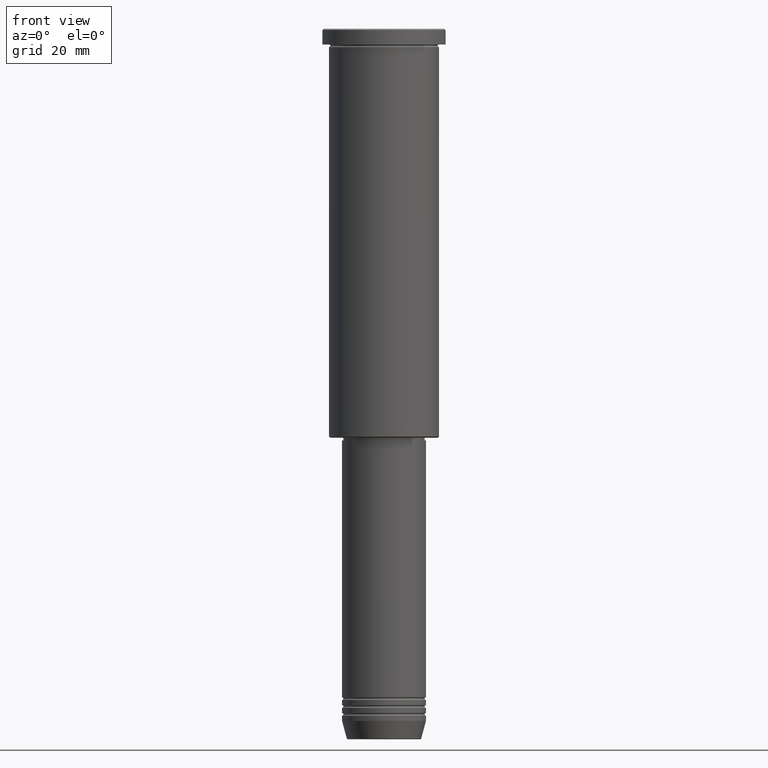
[diagram: clean part render]
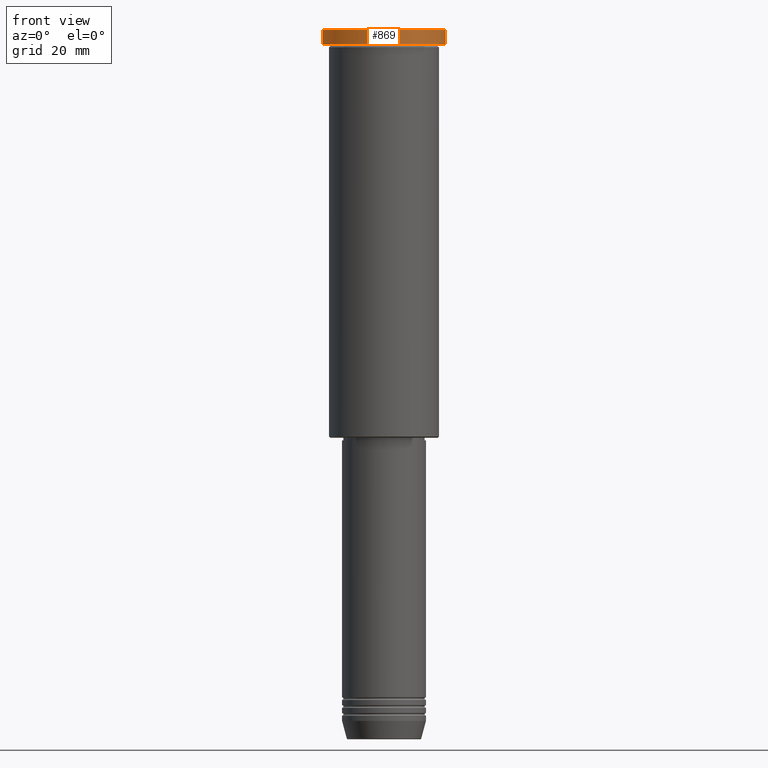
[diagram: same view with one face highlighted and labeled with its STEP entity id]
A machine part, front view. The second image highlights one B-rep face of the part: STEP entity #869.
In plain terms, the highlighted cylindrical surface (partial cylindrical patch) has radius 23.5 mm, axis along (-0, -0, 1).
Its self-contained STEP definition (entity closure, byte-faithful):
#10 = DIRECTION ( 'NONE',  ( 0.000000000000000000, 0.000000000000000000, -1.000000000000000000 ) ) ;
#17 = ORIENTED_EDGE ( 'NONE', *, *, #463, .T. ) ;
#39 = CARTESIAN_POINT ( 'NONE',  ( 0.000000000000000000, 0.000000000000000000, -5.999999999999994671 ) ) ;
#70 = CARTESIAN_POINT ( 'NONE',  ( -23.50000000000000000, 2.877919977996280320E-15, -5.999999999999994671 ) ) ;
#93 = DIRECTION ( 'NONE',  ( 1.000000000000000000, 0.000000000000000000, 0.000000000000000000 ) ) ;
#98 = CARTESIAN_POINT ( 'NONE',  ( 0.000000000000000000, 0.000000000000000000, 0.000000000000000000 ) ) ;
#112 = DIRECTION ( 'NONE',  ( 1.000000000000000000, 0.000000000000000000, 0.000000000000000000 ) ) ;
#154 = VECTOR ( 'NONE', #800, 1000.000000000000000 ) ;
#192 = DIRECTION ( 'NONE',  ( -0.000000000000000000, -0.000000000000000000, 1.000000000000000000 ) ) ;
#196 = CARTESIAN_POINT ( 'NONE',  ( 23.50000000000000000, 0.000000000000000000, 0.000000000000000000 ) ) ;
#214 = LINE ( 'NONE', #196, #832 ) ;
#260 = CARTESIAN_POINT ( 'NONE',  ( -23.50000000000000000, 2.877919977996280320E-15, -0.5000000000000004441 ) ) ;
#370 = CARTESIAN_POINT ( 'NONE',  ( 23.50000000000000000, 0.000000000000000000, -0.5000000000000004441 ) ) ;
#388 = FACE_OUTER_BOUND ( 'NONE', #943, .T. ) ;
#463 = EDGE_CURVE ( 'NONE', #692, #489, #214, .T. ) ;
#489 = VERTEX_POINT ( 'NONE', #370 ) ;
#543 = CARTESIAN_POINT ( 'NONE',  ( -23.50000000000000000, 2.877919977996280320E-15, 0.000000000000000000 ) ) ;
#608 = AXIS2_PLACEMENT_3D ( 'NONE', #725, #10, #93 ) ;
#625 = CIRCLE ( 'NONE', #608, 23.50000000000000000 ) ;
#637 = CIRCLE ( 'NONE', #1072, 23.50000000000000000 ) ;
#692 = VERTEX_POINT ( 'NONE', #1155 ) ;
#695 = AXIS2_PLACEMENT_3D ( 'NONE', #98, #192, #112 ) ;
#725 = CARTESIAN_POINT ( 'NONE',  ( 0.000000000000000000, 0.000000000000000000, -0.5000000000000004441 ) ) ;
#751 = VERTEX_POINT ( 'NONE', #70 ) ;
#769 = DIRECTION ( 'NONE',  ( -0.000000000000000000, -0.000000000000000000, 1.000000000000000000 ) ) ;
#775 = VERTEX_POINT ( 'NONE', #260 ) ;
#784 = EDGE_CURVE ( 'NONE', #751, #775, #992, .T. ) ;
#800 = DIRECTION ( 'NONE',  ( -0.000000000000000000, -0.000000000000000000, 1.000000000000000000 ) ) ;
#817 = EDGE_CURVE ( 'NONE', #489, #775, #625, .T. ) ;
#832 = VECTOR ( 'NONE', #1120, 1000.000000000000000 ) ;
#861 = ORIENTED_EDGE ( 'NONE', *, *, #784, .F. ) ;
#869 = ADVANCED_FACE ( 'NONE', ( #388 ), #1004, .T. ) ;
#943 = EDGE_LOOP ( 'NONE', ( #861, #1145, #17, #1142 ) ) ;
#992 = LINE ( 'NONE', #543, #154 ) ;
#1004 = CYLINDRICAL_SURFACE ( 'NONE', #695, 23.50000000000000000 ) ;
#1061 = DIRECTION ( 'NONE',  ( 1.000000000000000000, 0.000000000000000000, 0.000000000000000000 ) ) ;
#1072 = AXIS2_PLACEMENT_3D ( 'NONE', #39, #769, #1061 ) ;
#1085 = EDGE_CURVE ( 'NONE', #751, #692, #637, .T. ) ;
#1120 = DIRECTION ( 'NONE',  ( -0.000000000000000000, -0.000000000000000000, 1.000000000000000000 ) ) ;
#1142 = ORIENTED_EDGE ( 'NONE', *, *, #817, .T. ) ;
#1145 = ORIENTED_EDGE ( 'NONE', *, *, #1085, .T. ) ;
#1155 = CARTESIAN_POINT ( 'NONE',  ( 23.50000000000000000, 0.000000000000000000, -5.999999999999994671 ) ) ;